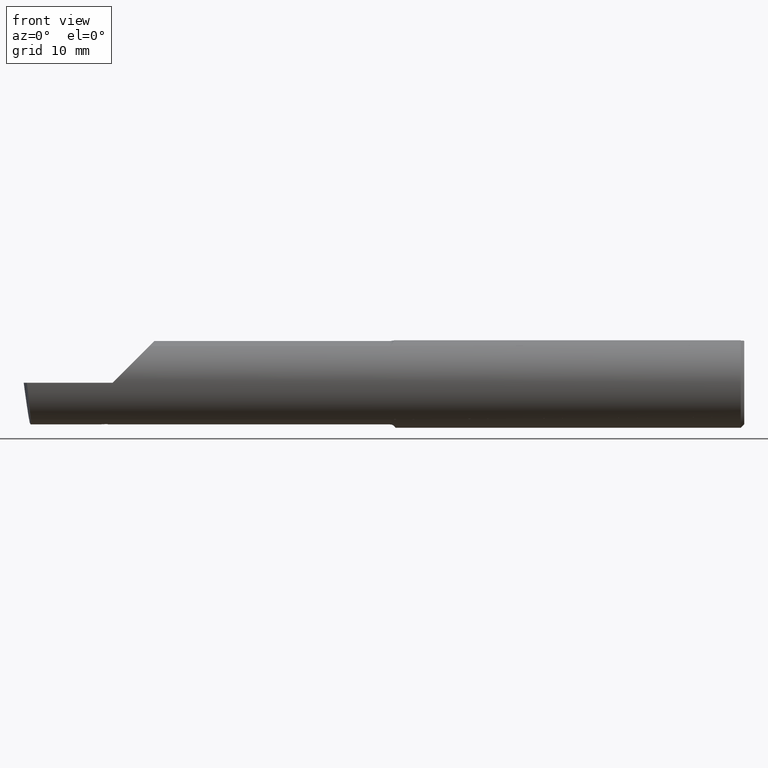
[diagram: clean part render]
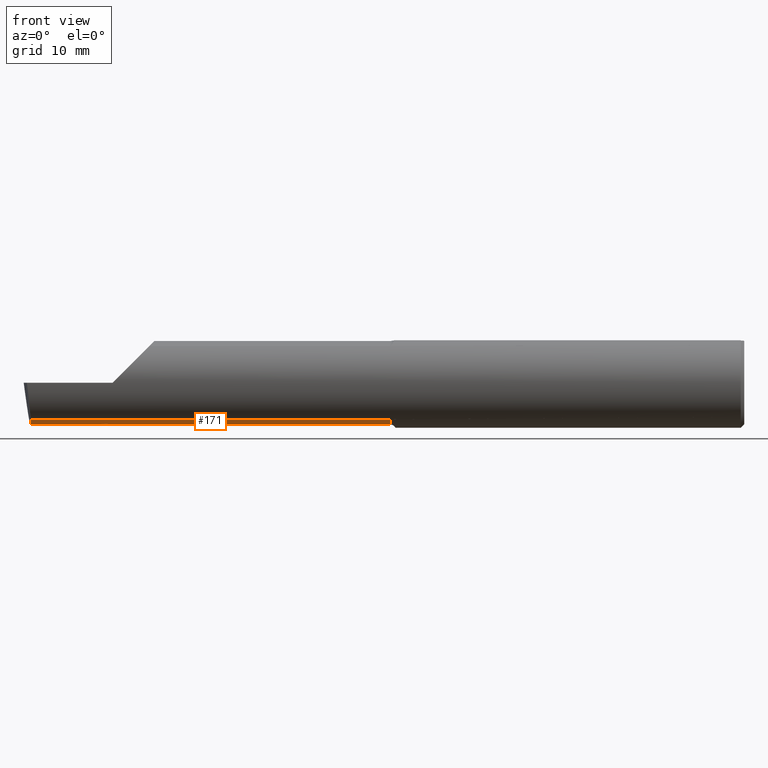
[diagram: same view with one face highlighted and labeled with its STEP entity id]
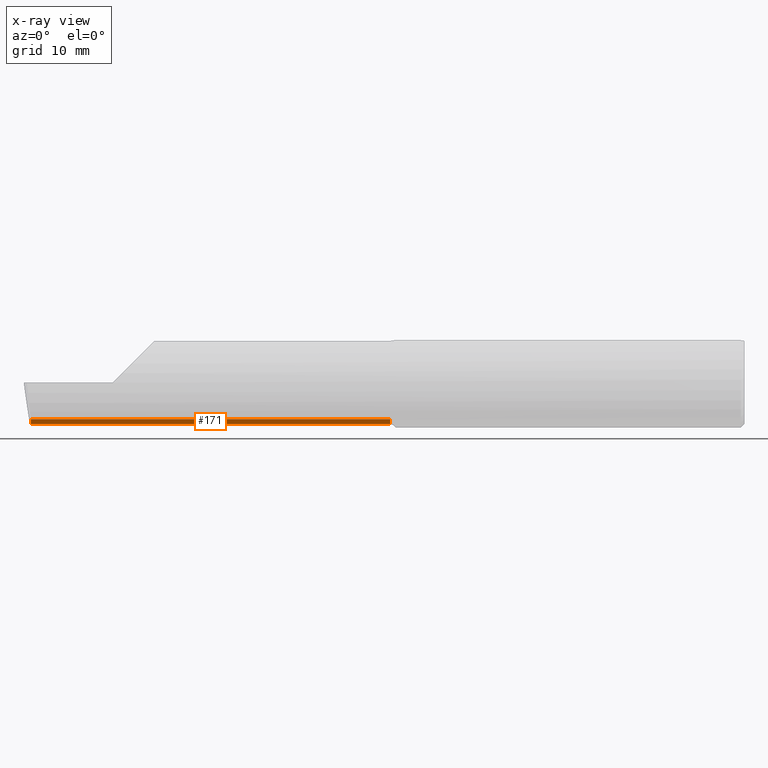
[diagram: x-ray of the same camera — body ghosted, the highlighted face saturated]
A machine part, front view. The second image highlights one B-rep face of the part: STEP entity #171.
The next image is the same camera in x-ray: the body ghosted, the highlighted face saturated — about 0% of this face is hidden behind the body in this view.
In plain terms, the highlighted cylindrical surface (partial cylindrical patch) has radius 4.4107 mm, axis along (1, -0, -0).
Its self-contained STEP definition (entity closure, byte-faithful):
#6 = AXIS2_PLACEMENT_3D ( 'NONE', #394, #50, #46 ) ;
#28 = CARTESIAN_POINT ( 'NONE',  ( -2.970333778789824741, -0.05480052201025344821, -0.1736500000000001098 ) ) ;
#44 = LINE ( 'NONE', #876, #302 ) ;
#45 = VERTEX_POINT ( 'NONE', #895 ) ;
#46 = DIRECTION ( 'NONE',  ( 0.000000000000000000, 0.000000000000000000, 1.000000000000000000 ) ) ;
#50 = DIRECTION ( 'NONE',  ( -1.000000000000000000, 0.000000000000000000, 0.000000000000000000 ) ) ;
#105 = DIRECTION ( 'NONE',  ( 1.000000000000000000, -0.000000000000000000, -0.000000000000000000 ) ) ;
#132 = ORIENTED_EDGE ( 'NONE', *, *, #409, .F. ) ;
#134 = DIRECTION ( 'NONE',  ( 1.000000000000000000, -0.000000000000000000, -0.000000000000000000 ) ) ;
#137 = VERTEX_POINT ( 'NONE', #298 ) ;
#153 = AXIS2_PLACEMENT_3D ( 'NONE', #376, #741, #663 ) ;
#158 = CARTESIAN_POINT ( 'NONE',  ( -2.970228340989529592, -0.08273216874458717840, -0.1666290898900873452 ) ) ;
#162 = DIRECTION ( 'NONE',  ( 0.000000000000000000, 0.000000000000000000, 1.000000000000000000 ) ) ;
#169 = DIRECTION ( 'NONE',  ( 1.000000000000000000, -0.000000000000000000, -0.000000000000000000 ) ) ;
#170 = ORIENTED_EDGE ( 'NONE', *, *, #718, .T. ) ;
#171 = ADVANCED_FACE ( 'NONE', ( #294 ), #647, .T. ) ;
#175 = EDGE_CURVE ( 'NONE', #244, #332, #346, .T. ) ;
#200 = EDGE_CURVE ( 'NONE', #332, #137, #370, .T. ) ;
#237 = EDGE_CURVE ( 'NONE', #137, #605, #307, .T. ) ;
#240 = ORIENTED_EDGE ( 'NONE', *, *, #237, .T. ) ;
#244 = VERTEX_POINT ( 'NONE', #654 ) ;
#252 = EDGE_CURVE ( 'NONE', #45, #256, #44, .T. ) ;
#256 = VERTEX_POINT ( 'NONE', #401 ) ;
#260 = VECTOR ( 'NONE', #134, 39.37007874015748143 ) ;
#266 = LINE ( 'NONE', #681, #260 ) ;
#268 = CIRCLE ( 'NONE', #153, 0.1736500000000001098 ) ;
#294 = FACE_OUTER_BOUND ( 'NONE', #514, .T. ) ;
#298 = CARTESIAN_POINT ( 'NONE',  ( -2.687563847190622912, -0.02599999999999965533, -0.1736500000000001098 ) ) ;
#302 = VECTOR ( 'NONE', #105, 39.37007874015748143 ) ;
#307 = B_SPLINE_CURVE_WITH_KNOTS ( 'NONE', 3,
 ( #309, #584, #864, #492 ),
 .UNSPECIFIED., .F., .F.,
 ( 4, 4 ),
 ( 0.004143445792891904851, 0.005263963715336056857 ),
 .UNSPECIFIED. ) ;
#309 = CARTESIAN_POINT ( 'NONE',  ( -2.687563847190622912, -0.02599999999999965533, -0.1736500000000001098 ) ) ;
#332 = VERTEX_POINT ( 'NONE', #520 ) ;
#346 =( BOUNDED_CURVE ( )  B_SPLINE_CURVE ( 3, ( #777, #158, #28, #575 ),
 .UNSPECIFIED., .F., .T. ) 
 B_SPLINE_CURVE_WITH_KNOTS ( ( 4, 4 ),
 ( 6.065609716100640370, 6.558126988897937437 ),
 .UNSPECIFIED. ) 
 CURVE ( )  GEOMETRIC_REPRESENTATION_ITEM ( )  RATIONAL_B_SPLINE_CURVE ( ( 1.000000000000000000, 0.9798875109367730651, 0.9798875109367730651, 1.000000000000000000 ) ) 
 REPRESENTATION_ITEM ( '' )  );
#370 = LINE ( 'NONE', #711, #418 ) ;
#376 = CARTESIAN_POINT ( 'NONE',  ( -2.649999999999999467, -0.02600000000000000921, 0.000000000000000000 ) ) ;
#394 = CARTESIAN_POINT ( 'NONE',  ( -1.474999999999999867, -0.02600000000000000921, 0.000000000000000000 ) ) ;
#399 = CIRCLE ( 'NONE', #6, 0.1736500000000000821 ) ;
#401 = CARTESIAN_POINT ( 'NONE',  ( -1.474999999999999867, -0.02600000000000003003, -0.1736500000000000821 ) ) ;
#409 = EDGE_CURVE ( 'NONE', #244, #494, #266, .T. ) ;
#418 = VECTOR ( 'NONE', #169, 39.37007874015748143 ) ;
#447 = CARTESIAN_POINT ( 'NONE',  ( 0.000000000000000000, -0.02600000000000000921, 0.000000000000000000 ) ) ;
#492 = CARTESIAN_POINT ( 'NONE',  ( -2.649999999999999467, -0.04896451326930162384, -0.1721248199136432566 ) ) ;
#494 = VERTEX_POINT ( 'NONE', #822 ) ;
#514 = EDGE_LOOP ( 'NONE', ( #789, #624, #240, #819, #581, #170, #132 ) ) ;
#520 = CARTESIAN_POINT ( 'NONE',  ( -2.971331905694168718, -0.02600000000000003003, -0.1736500000000001098 ) ) ;
#575 = CARTESIAN_POINT ( 'NONE',  ( -2.971331905694168718, -0.02600000000000003003, -0.1736500000000001098 ) ) ;
#581 = ORIENTED_EDGE ( 'NONE', *, *, #252, .T. ) ;
#584 = CARTESIAN_POINT ( 'NONE',  ( -2.675797774643362992, -0.03490818225547875214, -0.1736500000000001098 ) ) ;
#591 = CARTESIAN_POINT ( 'NONE',  ( -2.649999999999999467, -0.04896451326930162384, -0.1721248199136432566 ) ) ;
#605 = VERTEX_POINT ( 'NONE', #591 ) ;
#624 = ORIENTED_EDGE ( 'NONE', *, *, #200, .T. ) ;
#647 = CYLINDRICAL_SURFACE ( 'NONE', #650, 0.1736500000000001098 ) ;
#650 = AXIS2_PLACEMENT_3D ( 'NONE', #447, #782, #162 ) ;
#654 = CARTESIAN_POINT ( 'NONE',  ( -2.971021954143098220, -0.1081096153846145408, -0.1530108936036604916 ) ) ;
#663 = DIRECTION ( 'NONE',  ( 0.000000000000000000, -1.000000000000000000, 0.000000000000000000 ) ) ;
#681 = CARTESIAN_POINT ( 'NONE',  ( -2.062500000000000000, -0.1081096153846145408, -0.1530108936036604916 ) ) ;
#682 = EDGE_CURVE ( 'NONE', #605, #45, #268, .T. ) ;
#711 = CARTESIAN_POINT ( 'NONE',  ( 0.000000000000000000, -0.02600000000000003003, -0.1736500000000001098 ) ) ;
#718 = EDGE_CURVE ( 'NONE', #256, #494, #399, .T. ) ;
#741 = DIRECTION ( 'NONE',  ( 1.000000000000000000, -5.691349986800549142E-18, -0.000000000000000000 ) ) ;
#777 = CARTESIAN_POINT ( 'NONE',  ( -2.971021954143098220, -0.1081096153846145408, -0.1530108936036604916 ) ) ;
#782 = DIRECTION ( 'NONE',  ( 1.000000000000000000, -0.000000000000000000, -0.000000000000000000 ) ) ;
#789 = ORIENTED_EDGE ( 'NONE', *, *, #175, .T. ) ;
#819 = ORIENTED_EDGE ( 'NONE', *, *, #682, .T. ) ;
#822 = CARTESIAN_POINT ( 'NONE',  ( -1.474999999999999867, -0.1081096153846146102, -0.1530108936036604361 ) ) ;
#864 = CARTESIAN_POINT ( 'NONE',  ( -2.663098180847713436, -0.04226689653374738481, -0.1730184011442496006 ) ) ;
#876 = CARTESIAN_POINT ( 'NONE',  ( 0.000000000000000000, -0.02600000000000003003, -0.1736500000000001098 ) ) ;
#895 = CARTESIAN_POINT ( 'NONE',  ( -2.649999999999999467, -0.02600000000000003003, -0.1736500000000001098 ) ) ;